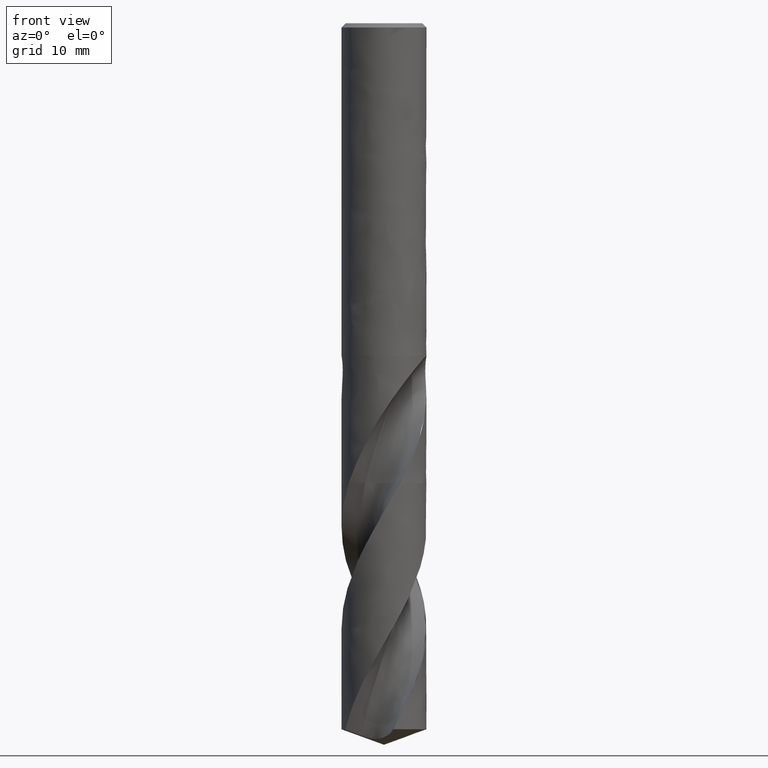
[diagram: clean part render]
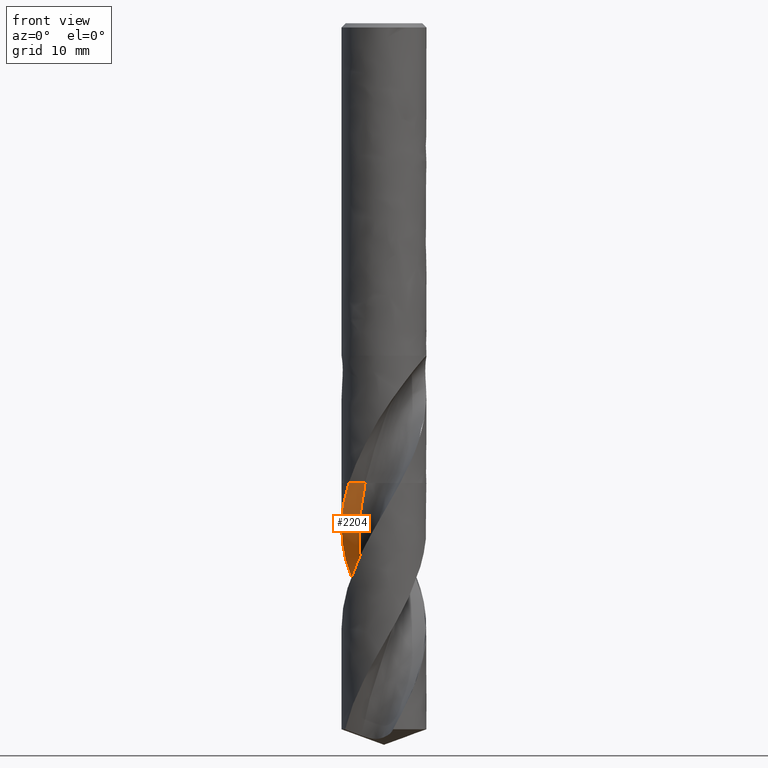
[diagram: same view with one face highlighted and labeled with its STEP entity id]
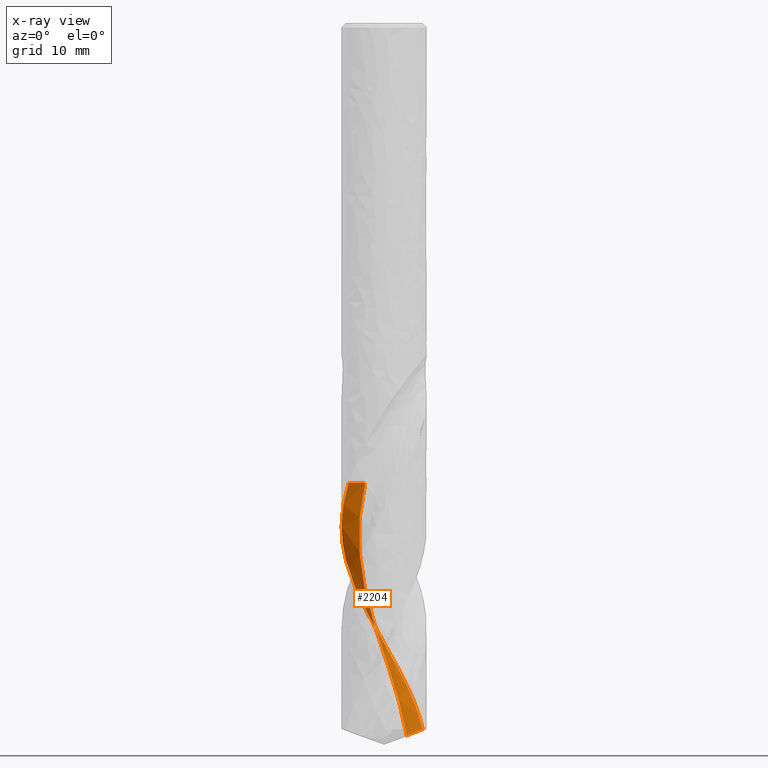
[diagram: x-ray of the same camera — body ghosted, the highlighted face saturated]
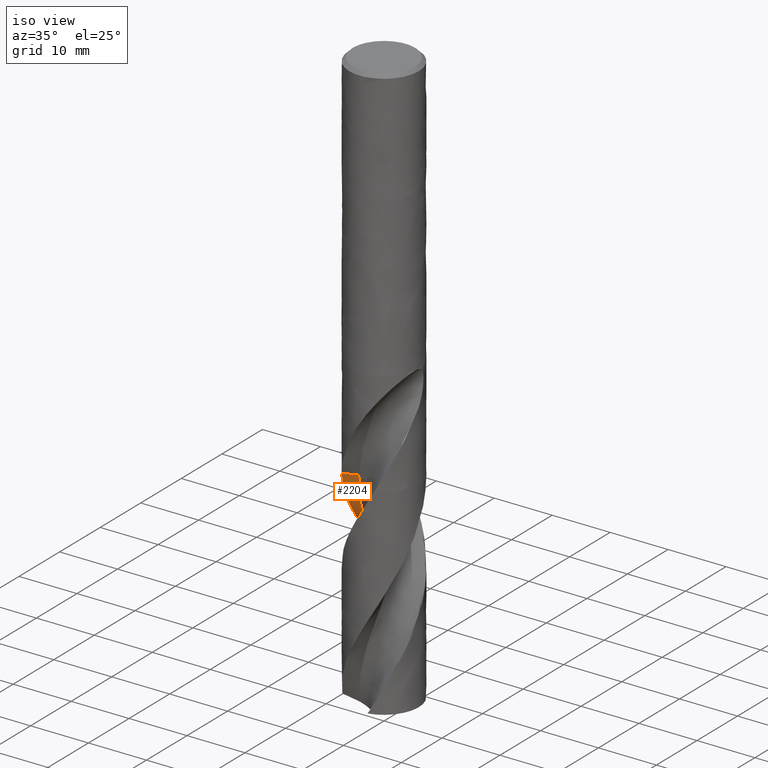
[diagram: same view with one face highlighted and labeled with its STEP entity id]
A machine part, front view. The second image highlights one B-rep face of the part: STEP entity #2204.
The next image is the same camera in x-ray: the body ghosted, the highlighted face saturated — about 0% of this face is hidden behind the body in this view.
A second angle (iso view) of the same face is appended — the face is thin or edge-on in the first view.
In plain terms, the highlighted face is a freeform B-spline surface patch.
Its self-contained STEP definition (entity closure, byte-faithful):
#1996 = VERTEX_POINT('', #1997);
#1997 = CARTESIAN_POINT('', (-4.98682465061266, -3.33640223954515, -65.));
#2006 = EDGE_CURVE('', #1996, #2007, #2009, .T.);
#2007 = VERTEX_POINT('', #2008);
#2008 = CARTESIAN_POINT('', (-2.67689118029727, -2.39508249800852, -65.));
#2009 = LINE('', #2010, #2011);
#2010 = CARTESIAN_POINT('', (-4.98682465061266, -3.33640223954515, -65.));
#2011 = VECTOR('', #2012, 2.49436875643717);
#2012 = DIRECTION('', (2.30993347031539, 0.941319741536626, 0.));
#2204 = ADVANCED_FACE('', (#2205), #2424, .T.);
#2205 = FACE_OUTER_BOUND('', #2206, .T.);
#2206 = EDGE_LOOP('', (#2207, #2208, #2241, #2352, #2385));
#2207 = ORIENTED_EDGE('', *, *, #2006, .F.);
#2208 = ORIENTED_EDGE('', *, *, #2209, .T.);
#2209 = EDGE_CURVE('', #1996, #2210, #2212, .T.);
#2210 = VERTEX_POINT('', #2211);
#2211 = CARTESIAN_POINT('', (-6., 4.725048656436E-15, -71.1659005637505));
#2212 = B_SPLINE_CURVE_WITH_KNOTS('', 3, (#2213, #2214, #2215, #2216, #2217, #2218, #2219, #2220, #2221, #2222, #2223, #2224, #2225, #2226, #2227, #2228, #2229, #2230, #2231, #2232, #2233, #2234, #2235, #2236, #2237, #2238, #2239, #2240), .UNSPECIFIED., .F., .U., (4, 3, 3, 3, 3, 3, 3, 3, 3, 4), (17.1356959616249, 17.4791577693673, 18.1439131918053, 19.1406436765396, 20.1371580128395, 21.13345856112, 22.1295412639215, 23.1254024913535, 24.1210374492771, 24.2440254986375), .UNSPECIFIED.);
#2213 = CARTESIAN_POINT('', (-4.98682465061266, -3.33640223954515, -65.));
#2214 = CARTESIAN_POINT('', (-5.01852889218876, -3.289014819783, -65.0992804529307));
#2215 = CARTESIAN_POINT('', (-5.04956099104935, -3.24117013697923, -65.1985796167194));
#2216 = CARTESIAN_POINT('', (-5.07989851559102, -3.19290323550466, -65.2978634303371));
#2217 = CARTESIAN_POINT('', (-5.13861547767475, -3.09948474251296, -65.4900229426173));
#2218 = CARTESIAN_POINT('', (-5.1947554120663, -3.00444476548094, -65.6822056972926));
#2219 = CARTESIAN_POINT('', (-5.24822634886941, -2.90794088506504, -65.8743718613565));
#2220 = CARTESIAN_POINT('', (-5.32840036619972, -2.76324351779436, -66.1625047105095));
#2221 = CARTESIAN_POINT('', (-5.40259739942494, -2.6152051679735, -66.4507039433734));
#2222 = CARTESIAN_POINT('', (-5.47053221541345, -2.46440201268453, -66.738851490721));
#2223 = CARTESIAN_POINT('', (-5.53845229923078, -2.31363156018375, -67.0269365511254));
#2224 = CARTESIAN_POINT('', (-5.60014159553795, -2.16003431773345, -67.3150921481654));
#2225 = CARTESIAN_POINT('', (-5.65536747065581, -2.00420028236902, -67.6031958192644));
#2226 = CARTESIAN_POINT('', (-5.71058149784533, -1.848399678987, -67.8912376818064));
#2227 = CARTESIAN_POINT('', (-5.75935849193263, -1.69029657946546, -68.179348871445));
#2228 = CARTESIAN_POINT('', (-5.80151497205412, -1.5304979676667, -68.467407487425));
#2229 = CARTESIAN_POINT('', (-5.84366223447658, -1.37073429653439, -68.7554031181268));
#2230 = CARTESIAN_POINT('', (-5.87920945189013, -1.20920929919197, -69.0434682829965));
#2231 = CARTESIAN_POINT('', (-5.90802417471565, -1.04654209230951, -69.3314811250717));
#2232 = CARTESIAN_POINT('', (-5.93683249069226, -0.883911053889418, -69.619429928538));
#2233 = CARTESIAN_POINT('', (-5.95892331322597, -0.720070659617562, -69.9074483655862));
#2234 = CARTESIAN_POINT('', (-5.97421591091781, -0.555647594916764, -70.1954144736526));
#2235 = CARTESIAN_POINT('', (-5.98950503398039, -0.391261888760481, -70.4833151529747));
#2236 = CARTESIAN_POINT('', (-5.99800539946271, -0.226224877664107, -70.7712849567615));
#2237 = CARTESIAN_POINT('', (-5.99968819396943, -0.0611684162336272, -71.0592029165509));
#2238 = CARTESIAN_POINT('', (-5.99989606494886, -0.0407794452919167, -71.0947686306397));
#2239 = CARTESIAN_POINT('', (-6., -0.0203895781062297, -71.1303345902688));
#2240 = CARTESIAN_POINT('', (-6., 5.04737730363473E-15, -71.1659005637505));
#2241 = ORIENTED_EDGE('', *, *, #2242, .F.);
#2242 = EDGE_CURVE('', #2243, #2210, #2245, .T.);
#2243 = VERTEX_POINT('', #2244);
#2244 = CARTESIAN_POINT('', (5.49054741570133, 2.41948115841713, -99.8161785944028));
#2245 = B_SPLINE_CURVE_WITH_KNOTS('', 3, (#2246, #2247, #2248, #2249, #2250, #2251, #2252, #2253, #2254, #2255, #2256, #2257, #2258, #2259, #2260, #2261, #2262, #2263, #2264, #2265, #2266, #2267, #2268, #2269, #2270, #2271, #2272, #2273, #2274, #2275, #2276, #2277, #2278, #2279, #2280, #2281, #2282, #2283, #2284, #2285, #2286, #2287, #2288, #2289, #2290, #2291, #2292, #2293, #2294, #2295, #2296, #2297, #2298, #2299, #2300, #2301, #2302, #2303, #2304, #2305, #2306, #2307, #2308, #2309, #2310, #2311, #2312, #2313, #2314, #2315, #2316, #2317, #2318, #2319, #2320, #2321, #2322, #2323, #2324, #2325, #2326, #2327, #2328, #2329, #2330, #2331, #2332, #2333, #2334, #2335, #2336, #2337, #2338, #2339, #2340, #2341, #2342, #2343, #2344, #2345, #2346, #2347, #2348, #2349, #2350, #2351), .UNSPECIFIED., .F., .U., (4, 3, 3, 3, 3, 3, 3, 3, 3, 3, 3, 3, 3, 3, 3, 3, 3, 3, 3, 3, 3, 3, 3, 3, 3, 3, 3, 3, 3, 3, 3, 3, 3, 3, 3, 4), (0., 0.99838810972738, 1.99656255422583, 2.99452657138258, 3.99228266102377, 4.98983224470416, 5.98717577697146, 6.98431342490689, 7.98124491872428, 8.97796910439686, 9.97448382898983, 10.9707860249466, 11.9668723699989, 12.9627387526628, 13.9583799906644, 14.0459486401359, 15.0455019205386, 16.0448092225635, 17.0438786769138, 18.0427172960313, 19.0413309151182, 20.0397241956466, 21.0379008785696, 22.0358641929161, 23.0336165822151, 24.0311596238592, 25.0284939744594, 26.0256196664508, 27.0225362226859, 28.0192424400958, 29.0157362665828, 30.0120147307934, 31.0080742024831, 32.0039103262548, 32.6681000940734, 32.989609215286), .UNSPECIFIED.);
#2246 = CARTESIAN_POINT('', (5.49054741570132, 2.41948115841714, -99.8161785944028));
#2247 = CARTESIAN_POINT('', (5.42420604140227, 2.57003015523184, -99.5268914989859));
#2248 = CARTESIAN_POINT('', (5.35164792441129, 2.71789269498638, -99.237552898549));
#2249 = CARTESIAN_POINT('', (5.27314437647336, 2.86250735979271, -98.9482831392504));
#2250 = CARTESIAN_POINT('', (5.19465762909463, 3.00709107558717, -98.6590752866279));
#2251 = CARTESIAN_POINT('', (5.11019644965019, 3.14848644233768, -98.3698157392488));
#2252 = CARTESIAN_POINT('', (5.02007704615924, 3.28615679032896, -98.0806251951366));
#2253 = CARTESIAN_POINT('', (4.9299766409372, 3.42379811573254, -97.7914956159166));
#2254 = CARTESIAN_POINT('', (4.83418397929189, 3.55777154337454, -97.5023146479335));
#2255 = CARTESIAN_POINT('', (4.73305917973298, 3.6875670571727, -97.2132021601852));
#2256 = CARTESIAN_POINT('', (4.63195544969961, 3.81733552785283, -96.9241499095199));
#2257 = CARTESIAN_POINT('', (4.52547966326794, 3.94298181050524, -96.6350469030088));
#2258 = CARTESIAN_POINT('', (4.41403397394345, 4.06402559992835, -96.3460118131026));
#2259 = CARTESIAN_POINT('', (4.30261135057605, 4.18504433687191, -96.0570365448999));
#2260 = CARTESIAN_POINT('', (4.18617380678273, 4.30151362724003, -95.7680105221429));
#2261 = CARTESIAN_POINT('', (4.06516118759587, 4.41298816210334, -95.4790527131173));
#2262 = CARTESIAN_POINT('', (3.94417356448097, 4.52443967105815, -95.1901545905132));
#2263 = CARTESIAN_POINT('', (3.81856298352173, 4.63094442216519, -94.901204978511));
#2264 = CARTESIAN_POINT('', (3.68880250151922, 4.73209637526388, -94.6123242613727));
#2265 = CARTESIAN_POINT('', (3.55906880632515, 4.8332274472904, -94.3235031786649));
#2266 = CARTESIAN_POINT('', (3.42513473282789, 4.92904861948002, -94.034630384482));
#2267 = CARTESIAN_POINT('', (3.28750486282744, 5.01919433543731, -93.7458264510034));
#2268 = CARTESIAN_POINT('', (3.14990344723799, 5.10932141413765, -93.4570822265533));
#2269 = CARTESIAN_POINT('', (3.00855159038942, 5.19381210859733, -93.1682867711685));
#2270 = CARTESIAN_POINT('', (2.86398379236977, 5.27234263274337, -92.8795596065413));
#2271 = CARTESIAN_POINT('', (2.71944605667857, 5.35085682676305, -92.5908924816392));
#2272 = CARTESIAN_POINT('', (2.57163305550067, 5.42344622742253, -92.3021746184949));
#2273 = CARTESIAN_POINT('', (2.42110542893892, 5.48983137281671, -92.0135246733828));
#2274 = CARTESIAN_POINT('', (2.27060943568118, 5.55620256740641, -91.7249353879096));
#2275 = CARTESIAN_POINT('', (2.1173365939809, 5.61640009265102, -91.4362951212971));
#2276 = CARTESIAN_POINT('', (1.96186733402878, 5.67019193358311, -91.1477232893264));
#2277 = CARTESIAN_POINT('', (1.80643123130853, 5.72397230222451, -90.8592130016324));
#2278 = CARTESIAN_POINT('', (1.64873616000628, 5.77137173862126, -90.5706510543371));
#2279 = CARTESIAN_POINT('', (1.48937768165755, 5.81220733640677, -90.2821580292615));
#2280 = CARTESIAN_POINT('', (1.33005372864845, 5.85303408707667, -89.9937275067887));
#2281 = CARTESIAN_POINT('', (1.16900270851758, 5.88731632074355, -89.7052453748881));
#2282 = CARTESIAN_POINT('', (1.00683367440654, 5.91492062094511, -89.4168319236544));
#2283 = CARTESIAN_POINT('', (0.844700451536409, 5.94251882538215, -89.1284821617905));
#2284 = CARTESIAN_POINT('', (0.681382851082803, 5.9634533687222, -88.8400813090048));
#2285 = CARTESIAN_POINT('', (0.517500640235425, 5.97764109723537, -88.5517485891467));
#2286 = CARTESIAN_POINT('', (0.353655479745076, 5.99182561819841, -88.2634810553156));
#2287 = CARTESIAN_POINT('', (0.189176905032274, 5.9992723279463, -87.9751627325421));
#2288 = CARTESIAN_POINT('', (0.0246901028204504, 5.99994919968705, -87.6869124210854));
#2289 = CARTESIAN_POINT('', (0.0102231577243489, 6.00000873191808, -87.6615602264187));
#2290 = CARTESIAN_POINT('', (-0.00424413703419763, 6.00001594080119, -87.6362080544182));
#2291 = CARTESIAN_POINT('', (-0.0187113597116083, 5.99997082368055, -87.6108559884005));
#2292 = CARTESIAN_POINT('', (-0.183847626775099, 5.99945583382722, -87.321474561304));
#2293 = CARTESIAN_POINT('', (-0.349012675461313, 5.99211736758635, -87.0320414277823));
#2294 = CARTESIAN_POINT('', (-0.513574278853672, 5.97797971392514, -86.7426775259207));
#2295 = CARTESIAN_POINT('', (-0.67809538555911, 5.96384553937523, -86.4533848331328));
#2296 = CARTESIAN_POINT('', (-0.842081334222606, 5.94290972835914, -86.1640398288747));
#2297 = CARTESIAN_POINT('', (-1.00490598027295, 5.91524842849495, -85.8747644952034));
#2298 = CARTESIAN_POINT('', (-1.16769187201484, 5.88759371236714, -85.5855580126906));
#2299 = CARTESIAN_POINT('', (-1.32938357867949, 5.85320538436494, -85.296299246999));
#2300 = CARTESIAN_POINT('', (-1.48936307070064, 5.81221108044377, -85.0071099515878));
#2301 = CARTESIAN_POINT('', (-1.64930559942246, 5.77122624826617, -84.7179874734315));
#2302 = CARTESIAN_POINT('', (-1.80760322121045, 5.72362139574786, -84.4288131679884));
#2303 = CARTESIAN_POINT('', (-1.96364902164112, 5.6695751621976, -84.13970784264));
#2304 = CARTESIAN_POINT('', (-2.11965967093805, 5.61554110319083, -83.8506676416328));
#2305 = CARTESIAN_POINT('', (-2.27348571519582, 5.55504560799634, -83.561575910015));
#2306 = CARTESIAN_POINT('', (-2.42453635736327, 5.48831699629529, -83.2725530114302));
#2307 = CARTESIAN_POINT('', (-2.57555367104398, 5.42160310789245, -82.9835938841456));
#2308 = CARTESIAN_POINT('', (-2.72386059989117, 5.34863071209555, -82.6945828713971));
#2309 = CARTESIAN_POINT('', (-2.86888857497358, 5.26967535474303, -82.4056412039847));
#2310 = CARTESIAN_POINT('', (-3.01388508679122, 5.19073712645346, -82.1167622213624));
#2311 = CARTESIAN_POINT('', (-3.155663845329, 5.10578602196094, -81.8278308944498));
#2312 = CARTESIAN_POINT('', (-3.29368207742773, 5.01514290652135, -81.5389691763952));
#2313 = CARTESIAN_POINT('', (-3.43167080698027, 4.92451916680234, -81.2501692049379));
#2314 = CARTESIAN_POINT('', (-3.56595735950414, 4.82816855147434, -80.9613170562541));
#2315 = CARTESIAN_POINT('', (-3.69602665591223, 4.72645606758238, -80.6725342244403));
#2316 = CARTESIAN_POINT('', (-3.82606846145755, 4.62476508118455, -80.3838124284699));
#2317 = CARTESIAN_POINT('', (-3.9519492654362, 4.51767183781608, -80.0950388819678));
#2318 = CARTESIAN_POINT('', (-4.07318473447128, 4.40558351627456, -79.8063342360157));
#2319 = CARTESIAN_POINT('', (-4.19439476597156, 4.29351871302026, -79.5176901658551));
#2320 = CARTESIAN_POINT('', (-4.31101290127867, 4.17641331378376, -79.2289944533779));
#2321 = CARTESIAN_POINT('', (-4.42258998484709, 4.05471303866627, -78.9403677246048));
#2322 = CARTESIAN_POINT('', (-4.53414372592593, 3.93303822386118, -78.6518013780014));
#2323 = CARTESIAN_POINT('', (-4.64070533832954, 3.80671945115838, -78.3631829416942));
#2324 = CARTESIAN_POINT('', (-4.74186498739955, 3.6762367226927, -78.074633956129));
#2325 = CARTESIAN_POINT('', (-4.84300347222144, 3.54578129334148, -77.7861453397166));
#2326 = CARTESIAN_POINT('', (-4.9387839384925, 3.41110989867481, -77.4976043912154));
#2327 = CARTESIAN_POINT('', (-5.02883788641679, 3.27273425626634, -77.2091329680032));
#2328 = CARTESIAN_POINT('', (-5.11887294655124, 3.13438763657272, -76.9207220483861));
#2329 = CARTESIAN_POINT('', (-5.20322115297505, 2.99228100322683, -76.6322590528411));
#2330 = CARTESIAN_POINT('', (-5.28155694840859, 2.84695560216822, -76.3438652443962));
#2331 = CARTESIAN_POINT('', (-5.35987621581973, 2.70166086322865, -76.0555322839876));
#2332 = CARTESIAN_POINT('', (-5.43221860585911, 2.55308742205763, -75.7671476057129));
#2333 = CARTESIAN_POINT('', (-5.49830378865072, 2.40180254136539, -75.4788318094779));
#2334 = CARTESIAN_POINT('', (-5.5643748891654, 2.25054989839263, -75.1905774512644));
#2335 = CARTESIAN_POINT('', (-5.62421950014254, 2.09652278066045, -74.9022713084447));
#2336 = CARTESIAN_POINT('', (-5.67760519185176, 1.94030906957064, -74.6140343022383));
#2337 = CARTESIAN_POINT('', (-5.73097934584364, 1.78412911939288, -74.3258595898226));
#2338 = CARTESIAN_POINT('', (-5.77791967307478, 1.62569836739368, -74.0376326534801));
#2339 = CARTESIAN_POINT('', (-5.81824342601417, 1.46562049509523, -73.7494752107912));
#2340 = CARTESIAN_POINT('', (-5.8585583153671, 1.30557780960252, -73.4613811081493));
#2341 = CARTESIAN_POINT('', (-5.89227618495449, 1.14382262078917, -73.1732347288914));
#2342 = CARTESIAN_POINT('', (-5.91926470717852, 0.980971623621964, -72.8851577672125));
#2343 = CARTESIAN_POINT('', (-5.94624717772549, 0.818157142779522, -72.5971454014654));
#2344 = CARTESIAN_POINT('', (-5.9665145380052, 0.654179427666102, -72.3090810555544));
#2345 = CARTESIAN_POINT('', (-5.97998563155914, 0.489665034842844, -72.0210857849256));
#2346 = CARTESIAN_POINT('', (-5.98897040554581, 0.379939374401606, -71.8290024618109));
#2347 = CARTESIAN_POINT('', (-5.99493543289112, 0.269949218025661, -71.6369050800426));
#2348 = CARTESIAN_POINT('', (-5.99786943680117, 0.159881891052486, -71.444829509249));
#2349 = CARTESIAN_POINT('', (-5.99928967701633, 0.106602465075184, -71.3518529971671));
#2350 = CARTESIAN_POINT('', (-6., 0.053301401013571, -71.2588753278731));
#2351 = CARTESIAN_POINT('', (-6., 5.04737730363473E-15, -71.1659005637505));
#2352 = ORIENTED_EDGE('', *, *, #2353, .F.);
#2353 = EDGE_CURVE('', #2354, #2243, #2356, .T.);
#2354 = VERTEX_POINT('', #2355);
#2355 = CARTESIAN_POINT('', (3.19951575281794, 1.63422535466538, -100.692359060152));
#2356 = B_SPLINE_CURVE_WITH_KNOTS('', 3, (#2357, #2358, #2359, #2360, #2361, #2362, #2363, #2364, #2365, #2366, #2367, #2368, #2369, #2370, #2371, #2372, #2373, #2374, #2375, #2376, #2377, #2378, #2379, #2380, #2381, #2382, #2383, #2384), .UNSPECIFIED., .F., .U., (4, 3, 3, 3, 3, 3, 3, 3, 3, 4), (0., 0.295856318940364, 0.591646042400784, 0.887390455533214, 1.18310489078711, 1.4788005141069, 1.77448553377777, 2.0701660297178, 2.36584653027247, 2.57834388303296), .UNSPECIFIED.);
#2357 = CARTESIAN_POINT('', (3.19951575281794, 1.63422535466538, -100.692359060152));
#2358 = CARTESIAN_POINT('', (3.28974333409416, 1.65656934306056, -100.659413769992));
#2359 = CARTESIAN_POINT('', (3.37970475017226, 1.679815955721, -100.626338209585));
#2360 = CARTESIAN_POINT('', (3.46938468028614, 1.7039576632533, -100.593166678473));
#2361 = CARTESIAN_POINT('', (3.55904442398653, 1.72809393663228, -100.560002614074));
#2362 = CARTESIAN_POINT('', (3.64843095936451, 1.75312709907119, -100.526739421461));
#2363 = CARTESIAN_POINT('', (3.73752701604549, 1.77904869056454, -100.493404030675));
#2364 = CARTESIAN_POINT('', (3.82660942461354, 1.80496631127825, -100.460073746346));
#2365 = CARTESIAN_POINT('', (3.91540946073123, 1.83177442453092, -100.426668160345));
#2366 = CARTESIAN_POINT('', (4.00390853824482, 1.8594637630771, -100.393208927788));
#2367 = CARTESIAN_POINT('', (4.09239864512541, 1.88715029491726, -100.359753086796));
#2368 = CARTESIAN_POINT('', (4.18059574940631, 1.9157203463322, -100.326240538108));
#2369 = CARTESIAN_POINT('', (4.26848040027617, 1.94516392774517, -100.292689084898));
#2370 = CARTESIAN_POINT('', (4.35635946034605, 1.97460563609869, -100.259139766069));
#2371 = CARTESIAN_POINT('', (4.44393388478088, 2.00492337136605, -100.225548516868));
#2372 = CARTESIAN_POINT('', (4.53118368418772, 2.03610648372464, -100.191930274938));
#2373 = CARTESIAN_POINT('', (4.61843035481561, 2.06728847785641, -100.158313238558));
#2374 = CARTESIAN_POINT('', (4.70536008670471, 2.09933852743018, -100.124666214701));
#2375 = CARTESIAN_POINT('', (4.79195259139491, 2.13224537059902, -100.091001972058));
#2376 = CARTESIAN_POINT('', (4.87854377129299, 2.16515171032097, -100.057338244448));
#2377 = CARTESIAN_POINT('', (4.96480528238546, 2.19891768696876, -100.023654332029));
#2378 = CARTESIAN_POINT('', (5.05071671590783, 2.23353146630679, -99.9899613348829));
#2379 = CARTESIAN_POINT('', (5.13662815077102, 2.26814524618504, -99.9562683372113));
#2380 = CARTESIAN_POINT('', (5.22219694022043, 2.30360982387914, -99.922563316278));
#2381 = CARTESIAN_POINT('', (5.30740269066902, 2.33991282699135, -99.8888560686102));
#2382 = CARTESIAN_POINT('', (5.36863769391181, 2.36600278572765, -99.8646316071229));
#2383 = CARTESIAN_POINT('', (5.4296884474662, 2.39252714647711, -99.8404046821813));
#2384 = CARTESIAN_POINT('', (5.49054741570133, 2.41948115841713, -99.8161785944028));
#2385 = ORIENTED_EDGE('', *, *, #2386, .T.);
#2386 = EDGE_CURVE('', #2354, #2007, #2387, .T.);
#2387 = B_SPLINE_CURVE_WITH_KNOTS('', 3, (#2388, #2389, #2390, #2391, #2392, #2393, #2394, #2395, #2396, #2397, #2398, #2399, #2400, #2401, #2402, #2403, #2404, #2405, #2406, #2407, #2408, #2409, #2410, #2411, #2412, #2413, #2414, #2415, #2416, #2417, #2418, #2419, #2420, #2421, #2422, #2423), .UNSPECIFIED., .F., .U., (4, 1, 1, 1, 1, 1, 1, 1, 1, 1, 1, 1, 1, 1, 1, 1, 1, 1, 1, 1, 1, 1, 1, 1, 1, 1, 1, 1, 1, 1, 1, 1, 1, 4), (1.35764093984823, 2.2028, 3.3042, 4.4056, 5.507, 6.6084, 7.7098, 8.8112, 9.9126, 11.014, 12.1154, 13.2168, 14.3182, 15.4196, 16.521, 17.6224, 18.7238, 19.8252, 20.9266, 22.028, 23.1294, 24.2308, 25.3322, 26.4336, 27.535, 28.6364, 29.7378, 30.8392, 31.9406, 33.042, 34.1434, 35.2448, 36.3462, 37.05), .UNSPECIFIED.);
#2388 = CARTESIAN_POINT('', (3.19951575281794, 1.63422535466538, -100.692359060152));
#2389 = CARTESIAN_POINT('', (3.15357219183988, 1.71899833906774, -100.410639373435));
#2390 = CARTESIAN_POINT('', (3.04012014692603, 1.90985794145533, -99.7617863533839));
#2391 = CARTESIAN_POINT('', (2.83624783397093, 2.19076765387688, -98.7458));
#2392 = CARTESIAN_POINT('', (2.58556225749222, 2.47019968347141, -97.6444));
#2393 = CARTESIAN_POINT('', (2.30796932121323, 2.72171165635999, -96.543));
#2394 = CARTESIAN_POINT('', (2.00650311223411, 2.94277939149955, -95.4416));
#2395 = CARTESIAN_POINT('', (1.68442585480345, 3.13119909533142, -94.3402));
#2396 = CARTESIAN_POINT('', (1.34519690621638, 3.28510889386326, -93.2388));
#2397 = CARTESIAN_POINT('', (0.992437256280549, 3.40300527566992, -92.1374));
#2398 = CARTESIAN_POINT('', (0.629893427514948, 3.48375653407728, -91.036));
#2399 = CARTESIAN_POINT('', (0.261400152587538, 3.52661251478108, -89.9346));
#2400 = CARTESIAN_POINT('', (-0.109157574706059, 3.53121075947251, -88.8332));
#2401 = CARTESIAN_POINT('', (-0.477882800358313, 3.49757896510844, -87.7318));
#2402 = CARTESIAN_POINT('', (-0.84090490044929, 3.4261337635649, -86.6304));
#2403 = CARTESIAN_POINT('', (-1.19441752348301, 3.31767584272331, -85.529));
#2404 = CARTESIAN_POINT('', (-1.53471584555617, 3.17338146434088, -84.4276));
#2405 = CARTESIAN_POINT('', (-1.85823280775912, 2.99479046285122, -83.3262));
#2406 = CARTESIAN_POINT('', (-2.1615740141526, 2.78379083858421, -82.2248));
#2407 = CARTESIAN_POINT('', (-2.44155098056631, 2.54260008692988, -81.1234));
#2408 = CARTESIAN_POINT('', (-2.69521243851664, 2.27374343197843, -80.022));
#2409 = CARTESIAN_POINT('', (-2.91987341484703, 1.98002915883717, -78.9206));
#2410 = CARTESIAN_POINT('', (-3.11314182606479, 1.66452126309834, -77.8192));
#2411 = CARTESIAN_POINT('', (-3.2729423468062, 1.33050965837687, -76.7178));
#2412 = CARTESIAN_POINT('', (-3.39753733381056, 0.98147820430217, -75.6164));
#2413 = CARTESIAN_POINT('', (-3.48554461183926, 0.621070833980952, -74.515));
#2414 = CARTESIAN_POINT('', (-3.53595194946629, 0.253056085456922, -73.4136));
#2415 = CARTESIAN_POINT('', (-3.54812809479906, -0.118709675706841, -72.3122));
#2416 = CARTESIAN_POINT('', (-3.52183021288659, -0.490319923235969, -71.2108));
#2417 = CARTESIAN_POINT('', (-3.45720780695582, -0.857856544332239, -70.1094));
#2418 = CARTESIAN_POINT('', (-3.35480244825163, -1.21742766147588, -69.008));
#2419 = CARTESIAN_POINT('', (-3.21554560966392, -1.56520927034945, -67.9066));
#2420 = CARTESIAN_POINT('', (-3.04074595970818, -1.89747199726516, -66.8052));
#2421 = CARTESIAN_POINT('', (-2.85720535604411, -2.17297452124342, -65.8363333333333));
#2422 = CARTESIAN_POINT('', (-2.72895117704706, -2.33397271474818, -65.2346));
#2423 = CARTESIAN_POINT('', (-2.67689118029727, -2.39508249800852, -65.));
#2424 = B_SPLINE_SURFACE_WITH_KNOTS('', 3, 1, ((#2425, #2426), (#2427, #2428), (#2429, #2430), (#2431, #2432), (#2433, #2434), (#2435, #2436), (#2437, #2438), (#2439, #2440), (#2441, #2442), (#2443, #2444), (#2445, #2446), (#2447, #2448), (#2449, #2450), (#2451, #2452), (#2453, #2454), (#2455, #2456), (#2457, #2458), (#2459, #2460), (#2461, #2462), (#2463, #2464), (#2465, #2466), (#2467, #2468), (#2469, #2470), (#2471, #2472), (#2473, #2474), (#2475, #2476), (#2477, #2478), (#2479, #2480), (#2481, #2482), (#2483, #2484), (#2485, #2486), (#2487, #2488), (#2489, #2490), (#2491, #2492), (#2493, #2494), (#2495, #2496)), .UNSPECIFIED., .F., .F., .U., (4, 1, 1, 1, 1, 1, 1, 1, 1, 1, 1, 1, 1, 1, 1, 1, 1, 1, 1, 1, 1, 1, 1, 1, 1, 1, 1, 1, 1, 1, 1, 1, 1, 4), (2, 2), (1.35764093984823, 2.2028, 3.3042, 4.4056, 5.507, 6.6084, 7.7098, 8.8112, 9.9126, 11.014, 12.1154, 13.2168, 14.3182, 15.4196, 16.521, 17.6224, 18.7238, 19.8252, 20.9266, 22.028, 23.1294, 24.2308, 25.3322, 26.4336, 27.535, 28.6364, 29.7378, 30.8392, 31.9406, 33.042, 34.1434, 35.2448, 36.3462, 37.05), (0., 0.208778578367911), .UNSPECIFIED.);
#2425 = CARTESIAN_POINT('', (3.19951575281794, 1.63422535466538, -100.692359060152));
#2426 = CARTESIAN_POINT('', (5.84935488409922, 1.97876785855531, -100.692359060152));
#2427 = CARTESIAN_POINT('', (3.15357219183988, 1.71899833906774, -100.410639373435));
#2428 = CARTESIAN_POINT('', (5.79243057266822, 2.13441103086396, -100.410639373435));
#2429 = CARTESIAN_POINT('', (3.04012014692603, 1.90985794145533, -99.7617863533839));
#2430 = CARTESIAN_POINT('', (5.64724198058716, 2.48733355197756, -99.7617863533839));
#2431 = CARTESIAN_POINT('', (2.83624783397093, 2.19076765387688, -98.7458));
#2432 = CARTESIAN_POINT('', (5.37081794266146, 3.01599598726843, -98.7458));
#2433 = CARTESIAN_POINT('', (2.58556225749222, 2.47019968347141, -97.6444));
#2434 = CARTESIAN_POINT('', (5.01442023517581, 3.55385322836656, -97.6444));
#2435 = CARTESIAN_POINT('', (2.30796932121323, 2.72171165635999, -96.543));
#2436 = CARTESIAN_POINT('', (4.60528508165786, 4.05096278218498, -96.543));
#2437 = CARTESIAN_POINT('', (2.00650311223411, 2.94277939149955, -95.4416));
#2438 = CARTESIAN_POINT('', (4.1479405545843, 4.50227358200718, -95.4416));
#2439 = CARTESIAN_POINT('', (1.68442585480345, 3.13119909533142, -94.3402));
#2440 = CARTESIAN_POINT('', (3.64738279052036, 4.90322231253682, -94.3402));
#2441 = CARTESIAN_POINT('', (1.34519690621638, 3.28510889386326, -93.2388));
#2442 = CARTESIAN_POINT('', (3.10902865382953, 5.24977777818499, -93.2388));
#2443 = CARTESIAN_POINT('', (0.992437256280549, 3.40300527566992, -92.1374));
#2444 = CARTESIAN_POINT('', (2.53865948164678, 5.53847774208958, -92.1374));
#2445 = CARTESIAN_POINT('', (0.629893427514948, 3.48375653407728, -91.036));
#2446 = CARTESIAN_POINT('', (1.94236305934616, 5.76646081223411, -91.036));
#2447 = CARTESIAN_POINT('', (0.261400152587538, 3.52661251478108, -89.9346));
#2448 = CARTESIAN_POINT('', (1.32647259277564, 5.93149235090483, -89.9346));
#2449 = CARTESIAN_POINT('', (-0.109157574706059, 3.53121075947251, -88.8332));
#2450 = CARTESIAN_POINT('', (0.697503713899198, 6.0319844123702, -88.8332));
#2451 = CARTESIAN_POINT('', (-0.477882800358313, 3.49757896510844, -87.7318));
#2452 = CARTESIAN_POINT('', (0.0620899666343361, 6.06700950346428, -87.7318));
#2453 = CARTESIAN_POINT('', (-0.84090490044929, 3.4261337635649, -86.6304));
#2454 = CARTESIAN_POINT('', (-0.573082609494734, 6.03630808447153, -86.6304));
#2455 = CARTESIAN_POINT('', (-1.19441752348301, 3.31767584272331, -85.529));
#2456 = CARTESIAN_POINT('', (-1.20134121897873, 5.94028976173922, -85.529));
#2457 = CARTESIAN_POINT('', (-1.53471584555617, 3.17338146434088, -84.4276));
#2458 = CARTESIAN_POINT('', (-1.81609178257299, 5.78002818130918, -84.4276));
#2459 = CARTESIAN_POINT('', (-1.85823280775912, 2.99479046285122, -83.3262));
#2460 = CARTESIAN_POINT('', (-2.41088355895875, 5.55724968397549, -83.3262));
#2461 = CARTESIAN_POINT('', (-2.1615740141526, 2.78379083858421, -82.2248));
#2462 = CARTESIAN_POINT('', (-2.97947234046903, 5.27431583430887, -82.2248));
#2463 = CARTESIAN_POINT('', (-2.44155098056631, 2.54260008692988, -81.1234));
#2464 = CARTESIAN_POINT('', (-3.51588166076096, 4.93419998683858, -81.1234));
#2465 = CARTESIAN_POINT('', (-2.69521243851664, 2.27374343197843, -80.022));
#2466 = CARTESIAN_POINT('', (-4.01446146945538, 4.54045810202146, -80.022));
#2467 = CARTESIAN_POINT('', (-2.91987341484703, 1.98002915883717, -78.9206));
#2468 = CARTESIAN_POINT('', (-4.46994375007324, 4.09719407235475, -78.9206));
#2469 = CARTESIAN_POINT('', (-3.11314182606479, 1.66452126309834, -77.8192));
#2470 = CARTESIAN_POINT('', (-4.87749458276574, 3.60901986485887, -77.8192));
#2471 = CARTESIAN_POINT('', (-3.2729423468062, 1.33050965837687, -76.7178));
#2472 = CARTESIAN_POINT('', (-5.23276218250995, 3.08101082943974, -76.7178));
#2473 = CARTESIAN_POINT('', (-3.39753733381056, 0.98147820430217, -75.6164));
#2474 = CARTESIAN_POINT('', (-5.53192047539659, 2.51865656462982, -75.6164));
#2475 = CARTESIAN_POINT('', (-3.48554461183926, 0.621070833980952, -74.515));
#2476 = CARTESIAN_POINT('', (-5.77170781408271, 1.9278077667571, -74.515));
#2477 = CARTESIAN_POINT('', (-3.53595194946629, 0.253056085456922, -73.4136));
#2478 = CARTESIAN_POINT('', (-5.94946046364576, 1.31461953734192, -73.4136));
#2479 = CARTESIAN_POINT('', (-3.54812809479906, -0.118709675706841, -72.3122));
#2480 = CARTESIAN_POINT('', (-6.06314056507202, 0.685491604471099, -72.3122));
#2481 = CARTESIAN_POINT('', (-3.52183021288659, -0.490319923235969, -71.2108));
#2482 = CARTESIAN_POINT('', (-6.11135820238378, 0.0470061318950738, -71.2108));
#2483 = CARTESIAN_POINT('', (-3.45720780695582, -0.857856544332239, -70.1094));
#2484 = CARTESIAN_POINT('', (-6.09338771758127, -0.594136894198688, -70.1094));
#2485 = CARTESIAN_POINT('', (-3.35480244825163, -1.21742766147588, -69.008));
#2486 = CARTESIAN_POINT('', (-6.00917671011554, -1.23118404723887, -69.008));
#2487 = CARTESIAN_POINT('', (-3.21554560966392, -1.56520927034945, -67.9066));
#2488 = CARTESIAN_POINT('', (-5.85935276630111, -1.85739980571294, -67.9066));
#2489 = CARTESIAN_POINT('', (-3.04074595970818, -1.89747199726516, -66.8052));
#2490 = CARTESIAN_POINT('', (-5.64520854500465, -2.46611523077433, -66.8052));
#2491 = CARTESIAN_POINT('', (-2.85720535604411, -2.17297452124342, -65.8363333333333));
#2492 = CARTESIAN_POINT('', (-5.4020054940019, -2.98049818943761, -65.8363333333333));
#2493 = CARTESIAN_POINT('', (-2.72895117704706, -2.33397271474818, -65.2346));
#2494 = CARTESIAN_POINT('', (-5.22417840306874, -3.28634442953533, -65.2346));
#2495 = CARTESIAN_POINT('', (-2.67689118029727, -2.39508249800852, -65.));
#2496 = CARTESIAN_POINT('', (-5.15093539369436, -3.40327891986789, -65.));